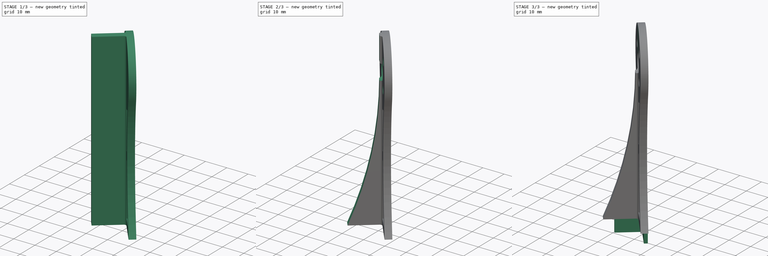
[diagram: build sequence overview — one tinted view per stage of 3, left to right]
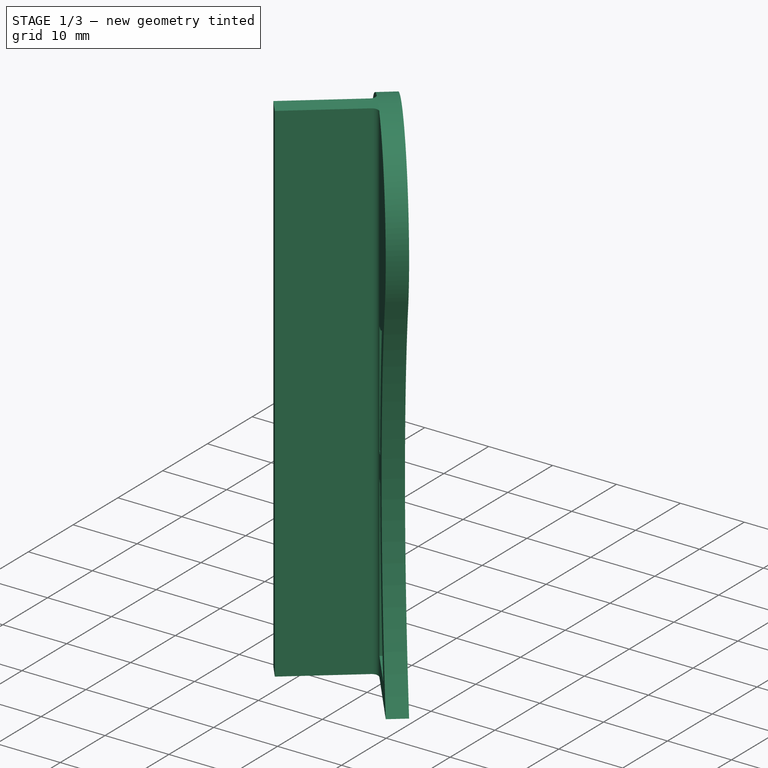
[diagram: stage 1 of 3 — iso view after this stage's code; geometry added in this stage tinted green]
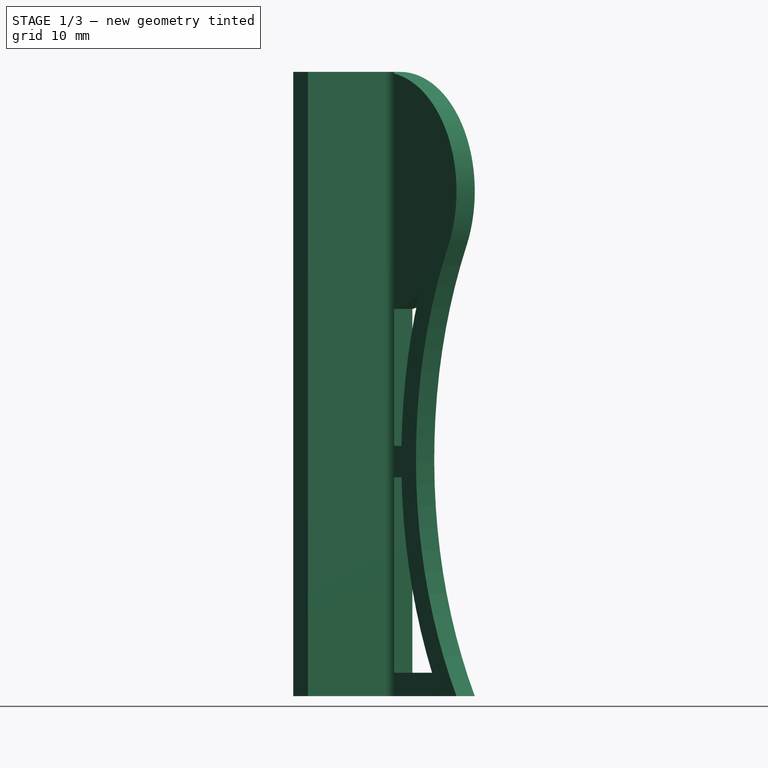
[diagram: stage 1 of 3 — front view after this stage's code; geometry added in this stage tinted green]
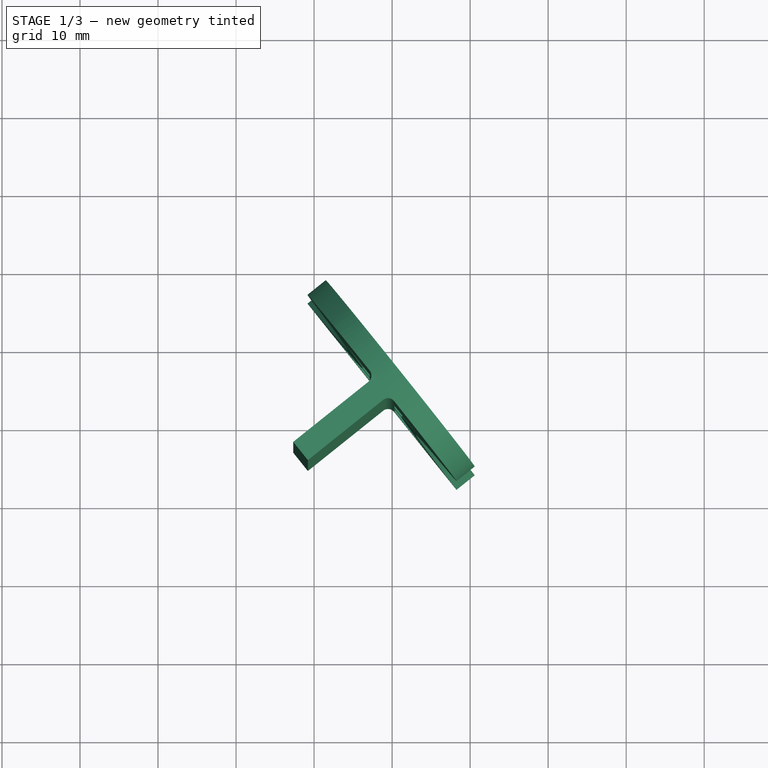
[diagram: stage 1 of 3 — top view after this stage's code; geometry added in this stage tinted green]
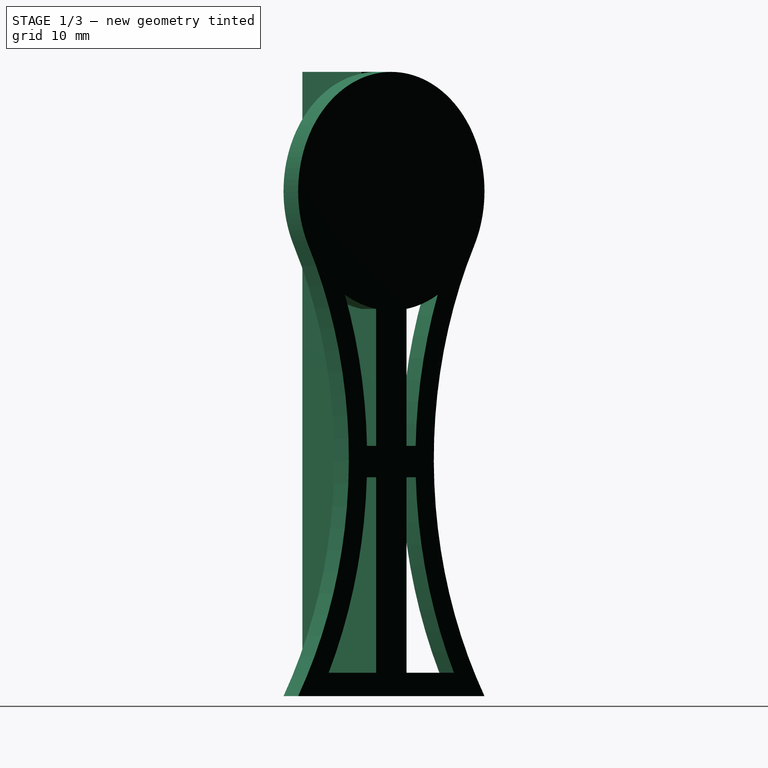
[diagram: stage 1 of 3 — right view after this stage's code; geometry added in this stage tinted green]
FCSTD DOCUMENT  (FreeCAD 0.16R6707 (Git))
Label: SupportMoteur
License: All rights reserved
LicenseURL: http://en.wikipedia.org/wiki/All_rights_reserved
objects: Sketcher::SketchObject×6, PartDesign::Pocket×4, PartDesign::Pad×2
note: 18 computed .brp shape members not serialized (recipe doc carries the construction recipe); baked Part::Feature solids carry a one-line shape summary decoded from their .brp

FEATURE [Sketcher::SketchObject] Sketch014
  Placement = pos=(0,0,6) rot=(0,0,1;0rad)
  sketch-geometry (11):
    g0: LineSegment StartX=149.153 StartY=6.26536 StartZ=0 EndX=157.141 EndY=-3.72233 EndZ=0
    g1: LineSegment StartX=151.496 StartY=8.13914 StartZ=0 EndX=170.595 EndY=-15.741 EndZ=0
    g2: LineSegment StartX=149.153 StartY=6.26536 StartZ=0 EndX=151.496 EndY=8.13914 EndZ=0
    g3: LineSegment StartX=168.252 StartY=-17.6148 StartZ=0 EndX=170.595 EndY=-15.741 EndZ=0
    g4: LineSegment [constr] StartX=148.268 StartY=-14.0198 StartZ=0 EndX=161.045 EndY=-3.80093 EndZ=0
    g5: LineSegment StartX=147.331 StartY=-12.8483 StartZ=0 EndX=149.205 EndY=-15.1912 EndZ=0
    g6: LineSegment StartX=149.205 StartY=-15.1912 StartZ=0 EndX=158.858 EndY=-7.47073 EndZ=0
    g7: LineSegment StartX=147.331 StartY=-12.8483 StartZ=0 EndX=156.984 EndY=-5.12788 EndZ=0
    g8: LineSegment StartX=160.264 StartY=-7.62709 StartZ=0 EndX=168.252 EndY=-17.6148 EndZ=0
    g9: ArcOfCircle CenterX=159.483 CenterY=-8.25168 CenterZ=0 NormalX=0 NormalY=0 NormalZ=1 Radius=1 StartAngle=0.674609 EndAngle=2.24541
    g10: ArcOfCircle CenterX=156.36 CenterY=-4.34692 CenterZ=0 NormalX=0 NormalY=0 NormalZ=1 Radius=1 StartAngle=5.387 EndAngle=6.95779
  constraints (24):
    c: Angle(g8,g4) = 1.5708
    c: Symmetric(g1,g1,g4)
    c: Angle(g3,g8) = 1.5708
    c: Distance(g3) = 3
    c: Symmetric(g5,g5,g4)
    c: Parallel(g7,g6)
    c: Distance(g5,g5) = 3
    c: Tangent(g0,g8)
    c: Tangent(g6,g9)
    c: Tangent(g8,g9)
    c: Tangent(g0,g10)
    c: Tangent(g7,g10)
    c: Symmetric(g6,g7,g4)
    c: Radius(g9) = 1
    c: Radius(g10) = 1
    c: PointOnObject(g4,g1)
    c: Symmetric(g0,g3,g4)
    c: Coincident(g5,g7)
    c: Coincident(g0,g2)
    c: Coincident(g1,g2)
    c: Coincident(g1,g3)
    c: Coincident(g3,g8)
    c: Coincident(g5,g6)
    c: PointOnObject(g4,g5)
FEATURE [PartDesign::Pad] Pad001
  Length = 80
  Length2 = 100
  Placement = pos=(0,0,6) rot=(0,0,1;0rad)
  Sketch = -> Sketch014
  Type = 0
FEATURE [Sketcher::SketchObject] Sketch016
  ExternalGeometry = -> [Pad001]
  Placement = pos=(96.3649,77.0711,6) rot=(0.321827,0.669488,0.669488;2.51887rad)
  Support = -> Pad001 [Face10]
  sketch-geometry (31):
    g0: ArcOfCircle CenterX=-103.556 CenterY=64.7109 CenterZ=0 NormalX=0 NormalY=0 NormalZ=1 Radius=15.2891 StartAngle=5.80762 EndAngle=9.90034
    g1: ArcOfCircle CenterX=-36.9119 CenterY=30.3901 CenterZ=0 NormalX=0 NormalY=0 NormalZ=1 Radius=59.673 StartAngle=2.66603 EndAngle=3.67594
    g2: ArcOfCircle CenterX=-170.2 CenterY=30.3901 CenterZ=0 NormalX=0 NormalY=0 NormalZ=1 Radius=59.673 StartAngle=5.74884 EndAngle=6.75875
    g3: LineSegment StartX=-118.845 StartY=0 StartZ=0 EndX=-131.376 EndY=0 EndZ=0
    g4: LineSegment StartX=-131.376 StartY=0 StartZ=0 EndX=-131.376 EndY=92.4454 EndZ=0
    g5: LineSegment StartX=-131.376 StartY=92.4454 StartZ=0 EndX=-73.6323 EndY=92.4454 EndZ=0
    g6: LineSegment StartX=-73.6323 StartY=92.4454 StartZ=0 EndX=-73.6323 EndY=0 EndZ=0
    g7: LineSegment StartX=-73.6323 StartY=0 StartZ=0 EndX=-88.2667 EndY=0 EndZ=0
    g8: LineSegment [constr] StartX=-170.2 StartY=30.3901 StartZ=0 EndX=-36.9119 EndY=30.3901 EndZ=0
    g9: ArcOfCircle CenterX=-36.9119 CenterY=30.3901 CenterZ=0 NormalX=0 NormalY=0 NormalZ=1 Radius=62.673 StartAngle=2.79883 EndAngle=3.11482
    g10: ArcOfCircle CenterX=-170.2 CenterY=30.3901 CenterZ=0 NormalX=0 NormalY=0 NormalZ=1 Radius=62.673 StartAngle=5.83089 EndAngle=6.24578
    g11: ArcOfCircle CenterX=-103.556 CenterY=64.7109 CenterZ=0 NormalX=0 NormalY=0 NormalZ=1 Radius=15.2891 StartAngle=4.1909 EndAngle=4.54814
    g12: GeomPoint [constr] X=-107.527 Y=30.3901 Z=0
    g13: GeomPoint [constr] X=-110.527 Y=30.3901 Z=0
    g14: GeomPoint [constr] X=-99.585 Y=30.3901 Z=0
    g15: GeomPoint [constr] X=-96.585 Y=30.3901 Z=0
    g16: LineSegment StartX=-101.056 StartY=49.6275 StartZ=0 EndX=-101.056 EndY=32.0676 EndZ=0
    g17: LineSegment StartX=-106.056 StartY=49.6275 StartZ=0 EndX=-106.056 EndY=32.0676 EndZ=0
    g18: LineSegment StartX=-107.549 StartY=32.0676 StartZ=0 EndX=-106.056 EndY=32.0676 EndZ=0
    g19: LineSegment StartX=-107.571 StartY=28.0464 StartZ=0 EndX=-106.056 EndY=28.0464 EndZ=0
    g20: LineSegment StartX=-106.056 StartY=28.0464 StartZ=0 EndX=-106.056 EndY=3 EndZ=0
    g21: LineSegment StartX=-101.056 StartY=28.0464 StartZ=0 EndX=-101.056 EndY=3 EndZ=0
    g22: LineSegment StartX=-101.056 StartY=32.0676 StartZ=0 EndX=-99.5625 EndY=32.0676 EndZ=0
    g23: LineSegment StartX=-101.056 StartY=28.0464 StartZ=0 EndX=-99.5411 EndY=28.0464 EndZ=0
    g24: ArcOfCircle CenterX=-170.2 CenterY=30.3901 CenterZ=0 NormalX=0 NormalY=0 NormalZ=1 Radius=62.673 StartAngle=0.0267686 EndAngle=0.342764
    g25: ArcOfCircle CenterX=-36.9119 CenterY=30.3901 CenterZ=0 NormalX=0 NormalY=0 NormalZ=1 Radius=62.673 StartAngle=3.179 EndAngle=3.59389
    g26: ArcOfCircle CenterX=-103.556 CenterY=64.7109 CenterZ=0 NormalX=0 NormalY=0 NormalZ=1 Radius=15.2891 StartAngle=4.87664 EndAngle=5.23388
    g27: ArcOfCircle [constr] CenterX=-103.556 CenterY=64.7109 CenterZ=0 NormalX=0 NormalY=0 NormalZ=1 Radius=15.2891 StartAngle=3.61716 EndAngle=5.80762
    g28: LineSegment StartX=-113.829 StartY=3 StartZ=0 EndX=-106.056 EndY=3 EndZ=0
    g29: LineSegment StartX=-101.056 StartY=3 StartZ=0 EndX=-93.283 EndY=3 EndZ=0
    g30: LineSegment [constr] StartX=-103.556 StartY=33.4455 StartZ=0 EndX=-103.556 EndY=26.2823 EndZ=0
  constraints (79):
    c: Coincident(g0,g1)
    c: Coincident(g0,g2)
    c: Coincident(g1,g7)
    c: Coincident(g5,g6)
    c: Coincident(g6,g7)
    c: Coincident(g4,g5)
    c: Coincident(g3,g4)
    c: Coincident(g2,g3)
    c: DistanceY(g0,g0) = 7
    c: DistanceY(g0,g0) = 7
    c: Coincident(g2,g-3)
    c: Coincident(g1,g-4)
    c: Tangent(g0,g-3)
    c: Tangent(g-5,g0)
    c: Tangent(g0,g-4)
    c: PointOnObject(g6,g-1)
    c: PointOnObject(g3,g-1)
    c: Vertical(g6)
    c: Vertical(g4)
    c: Horizontal(g5)
    c: Horizontal(g8)
    c: Coincident(g1,g8)
    c: Coincident(g2,g8)
    c: Coincident(g10,g2)
    c: Coincident(g9,g1)
    c: Coincident(g0,g11)
    c: PointOnObject(g9,g11)
    c: PointOnObject(g13,g2)
    c: PointOnObject(g13,g8)
    c: PointOnObject(g12,g10)
    c: PointOnObject(g12,g8)
    c: PointOnObject(g14,g9)
    c: PointOnObject(g15,g1)
    c: PointOnObject(g14,g8)
    c: PointOnObject(g15,g8)
    c: DistanceX(g14,g15) = 3
    c: DistanceX(g13,g12) = 3
    c: Vertical(g16)
    c: Vertical(g17)
    c: Horizontal(g18)
    c: Horizontal(g19)
    c: Tangent(g17,g20)
    c: Tangent(g16,g21)
    c: Coincident(g18,g17)
    c: Coincident(g22,g16)
    c: Tangent(g18,g22)
    c: Coincident(g19,g20)
    c: Coincident(g23,g21)
    c: Tangent(g19,g23)
    c: Equal(g10,g24)
    c: Coincident(g24,g18)
    c: Coincident(g10,g24)
    c: Coincident(g10,g19)
    c: Equal(g9,g25)
    c: Coincident(g25,g23)
    c: Coincident(g9,g25)
    c: Coincident(g9,g22)
    c: Coincident(g11,g24)
    c: Equal(g11,g26)
    c: Coincident(g11,g17)
    c: Coincident(g26,g16)
    c: Coincident(g11,g26)
    c: PointOnObject(g26,g9)
    c: Coincident(g27,g0)
    c: Coincident(g27,g0)
    c: Coincident(g27,g0)
    c: PointOnObject(g11,g27)
    c: Tangent(g2,g0)
    c: Horizontal(g28)
    c: Horizontal(g29)
    c: Coincident(g21,g29)
    c: Coincident(g20,g28)
    c: Coincident(g10,g28)
    c: Coincident(g25,g29)
    c: DistanceY(g1,g21) = 3
    c: DistanceY(g2,g10) = 3
    c: DistanceX(g19,g21) = 5
    c: Symmetric(g15,g13,g30)
    c: Symmetric(g19,g21,g30)
FEATURE [PartDesign::Pocket] Pocket009
  Length = 3
  Placement = pos=(0,0,6) rot=(0,0,1;0rad)
  Sketch = -> Sketch016
  Type = 0
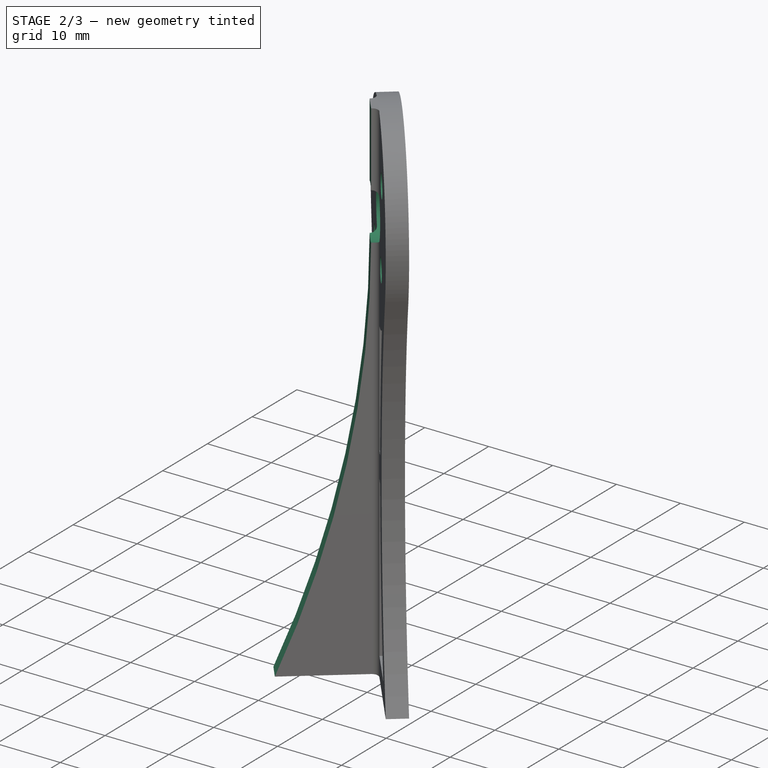
[diagram: stage 2 of 3 — iso view after this stage's code; geometry added in this stage tinted green]
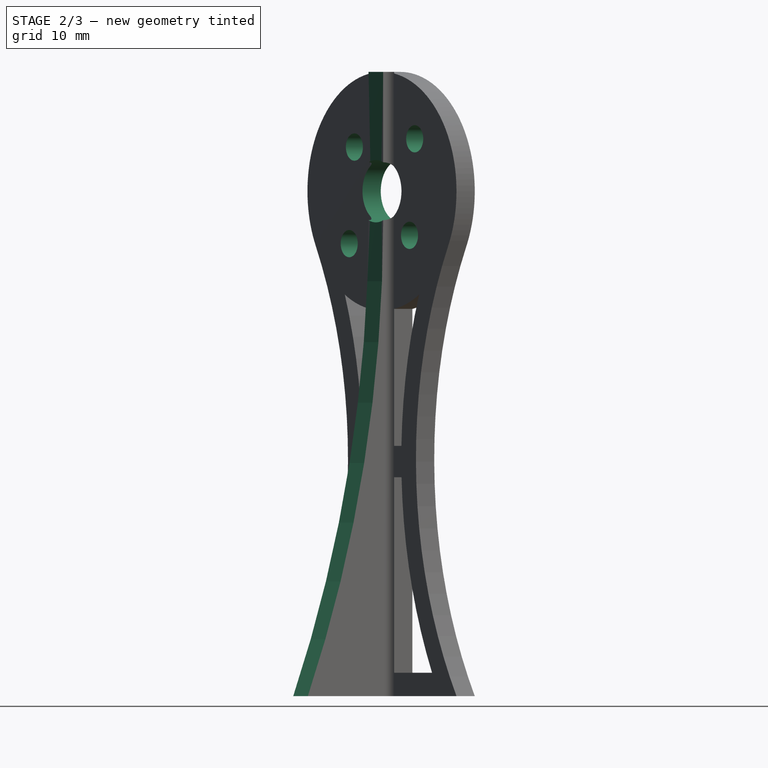
[diagram: stage 2 of 3 — front view after this stage's code; geometry added in this stage tinted green]
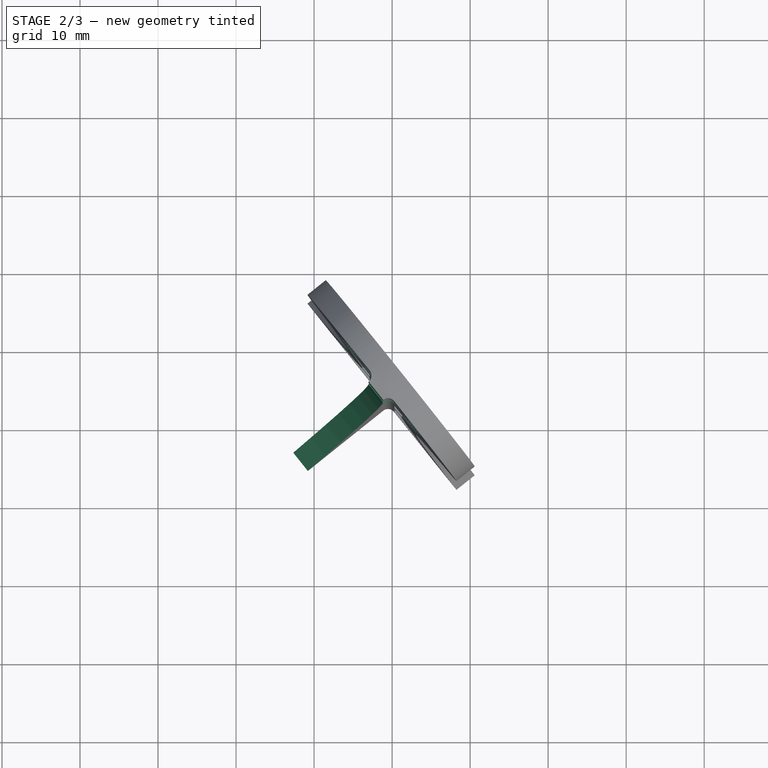
[diagram: stage 2 of 3 — top view after this stage's code; geometry added in this stage tinted green]
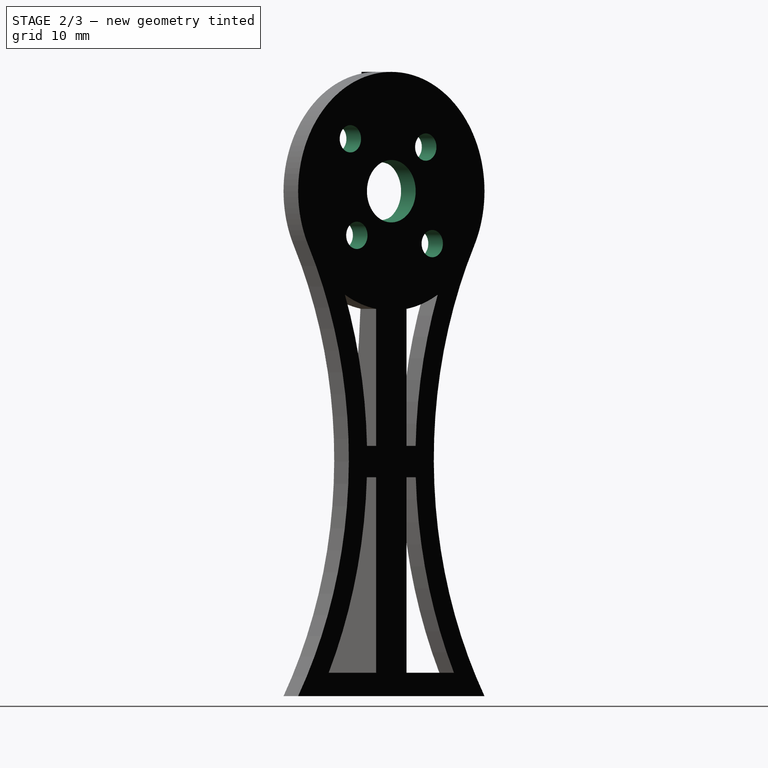
[diagram: stage 2 of 3 — right view after this stage's code; geometry added in this stage tinted green]
FEATURE [Sketcher::SketchObject] Sketch
  ExternalGeometry = -> [Pocket009]
  Placement = pos=(96.3649,77.0711,6) rot=(0.321827,0.669488,0.669488;2.51887rad)
  Support = -> Pocket009 [Face3]
  sketch-geometry (8):
    g0: Circle CenterX=-103.556 CenterY=64.7109 CenterZ=0 NormalX=0 NormalY=0 NormalZ=1 Radius=4
    g1: Circle CenterX=-97.899 CenterY=70.3677 CenterZ=0 NormalX=0 NormalY=0 NormalZ=1 Radius=1.75
    g2: Circle CenterX=-110.273 CenterY=71.4284 CenterZ=0 NormalX=0 NormalY=0 NormalZ=1 Radius=1.75
    g3: Circle CenterX=-109.213 CenterY=59.054 CenterZ=0 NormalX=0 NormalY=0 NormalZ=1 Radius=1.75
    g4: Circle CenterX=-96.8383 CenterY=57.9933 CenterZ=0 NormalX=0 NormalY=0 NormalZ=1 Radius=1.75
    g5: LineSegment [constr] StartX=-103.556 StartY=80 StartZ=0 EndX=-103.556 EndY=64.7109 EndZ=0
    g6: LineSegment [constr] StartX=-109.213 StartY=59.054 StartZ=0 EndX=-97.899 EndY=70.3677 EndZ=0
    g7: LineSegment [constr] StartX=-110.273 StartY=71.4284 StartZ=0 EndX=-96.8383 EndY=57.9933 EndZ=0
  constraints (21):
    c: Coincident(g0,g-3)
    c: Radius(g2) = 1.75
    c: Radius(g0) = 4
    c: Radius(g1) = 1.75
    c: Radius(g3) = 1.75
    c: Radius(g4) = 1.75
    c: Vertical(g5)
    c: Coincident(g7,g2)
    c: Coincident(g1,g6)
    c: Coincident(g5,g0)
    c: PointOnObject(g0,g6)
    c: PointOnObject(g0,g7)
    c: Coincident(g6,g3)
    c: Coincident(g7,g4)
    c: Coincident(g5,g-3)
    c: Angle(g7,g6) = 1.5708
    c: Angle(g6,g5) = 0.785398
    c: Distance(g2,g0) = 9.5
    c: Distance(g0,g4) = 9.5
    c: Distance(g0,g1) = 8
    c: Distance(g3,g0) = 8
FEATURE [PartDesign::Pocket] Pocket
  Length = 5
  Placement = pos=(0,0,6) rot=(0,0,1;0rad)
  Sketch = -> Sketch
  Type = 1
FEATURE [Sketcher::SketchObject] Sketch017
  ExternalGeometry = -> [Pocket]
  Placement = pos=(65.6171,-82.0435,6) rot=(0.895865,0.314186,0.314186;1.68054rad)
  Support = -> Pocket [Face11]
  sketch-geometry (4):
    g0: ArcOfCircle CenterX=-37.3168 CenterY=61.0029 CenterZ=0 NormalX=0 NormalY=0 NormalZ=1 Radius=156.711 StartAngle=5.88335 EndAngle=6.28318
    g1: LineSegment StartX=119.394 StartY=61.0028 StartZ=0 EndX=119.394 EndY=80 EndZ=0
    g2: LineSegment StartX=119.394 StartY=80 StartZ=0 EndX=107.034 EndY=80 EndZ=0
    g3: LineSegment StartX=107.034 StartY=80 StartZ=0 EndX=107.034 EndY=0 EndZ=0
  constraints (11):
    c: PointOnObject(g0,g-1)
    c: Coincident(g-3,g0)
    c: Coincident(g0,g-7)
    c: Tangent(g-7,g0)
    c: Horizontal(g2)
    c: Coincident(g3,g0)
    c: Coincident(g2,g3)
    c: Coincident(g2,g-5)
    c: Coincident(g1,g2)
    c: Coincident(g1,g-6)
    c: Coincident(g1,g0)
FEATURE [PartDesign::Pocket] Pocket010
  Length = 5
  Placement = pos=(0,0,6) rot=(0,0,1;0rad)
  Sketch = -> Sketch017
  Type = 1
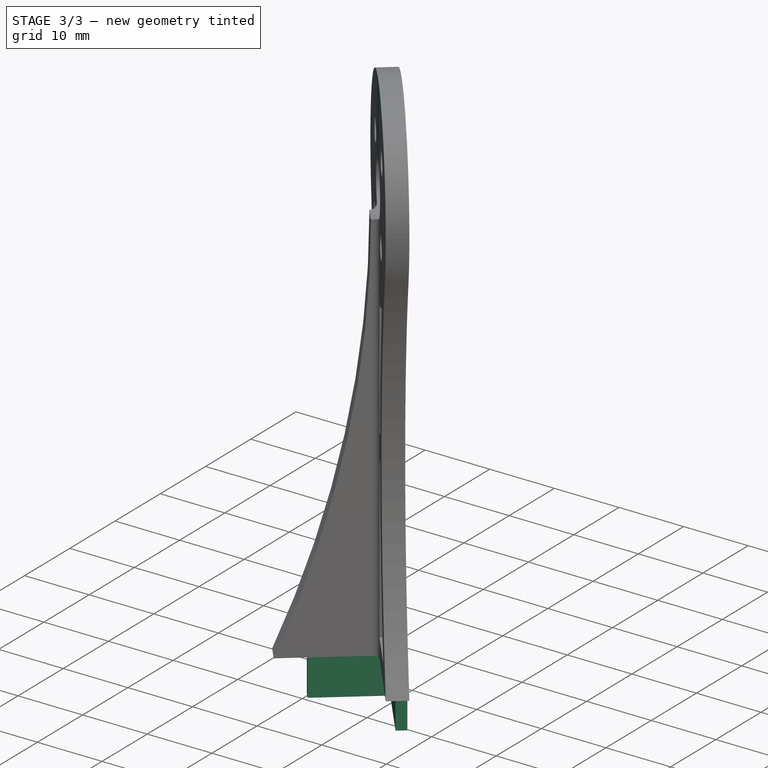
[diagram: stage 3 of 3 — iso view after this stage's code; geometry added in this stage tinted green]
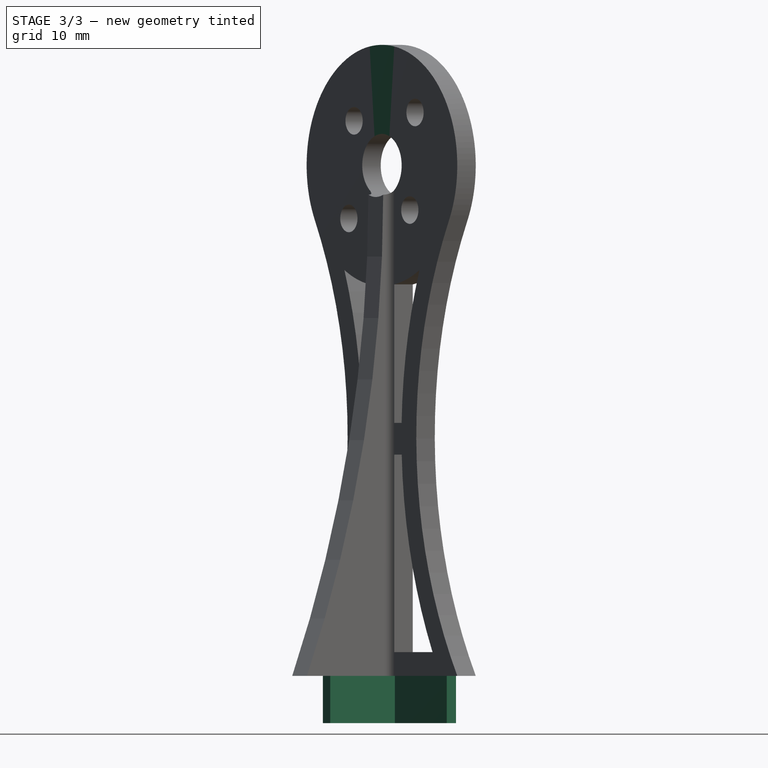
[diagram: stage 3 of 3 — front view after this stage's code; geometry added in this stage tinted green]
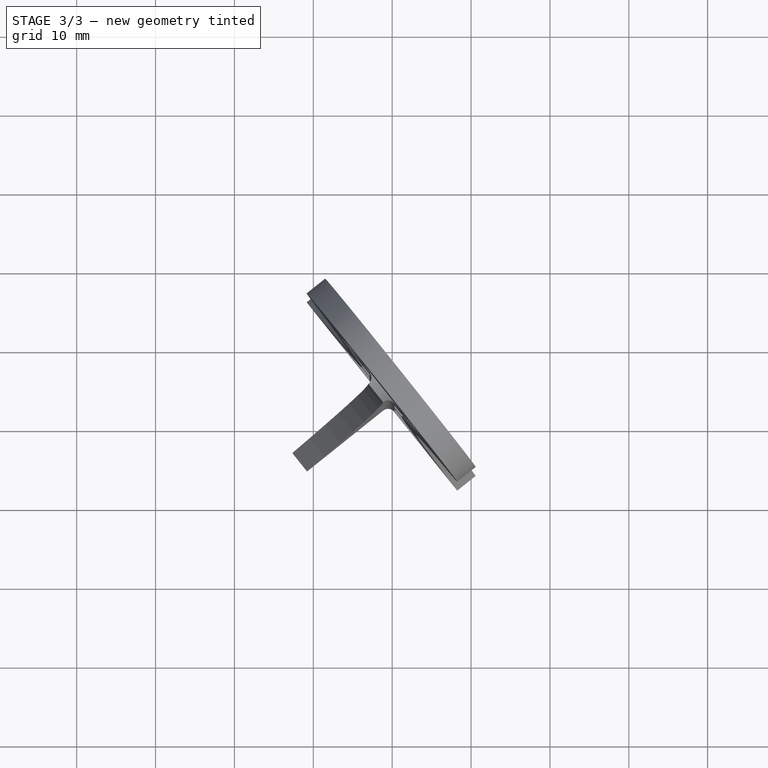
[diagram: stage 3 of 3 — top view after this stage's code; geometry added in this stage tinted green]
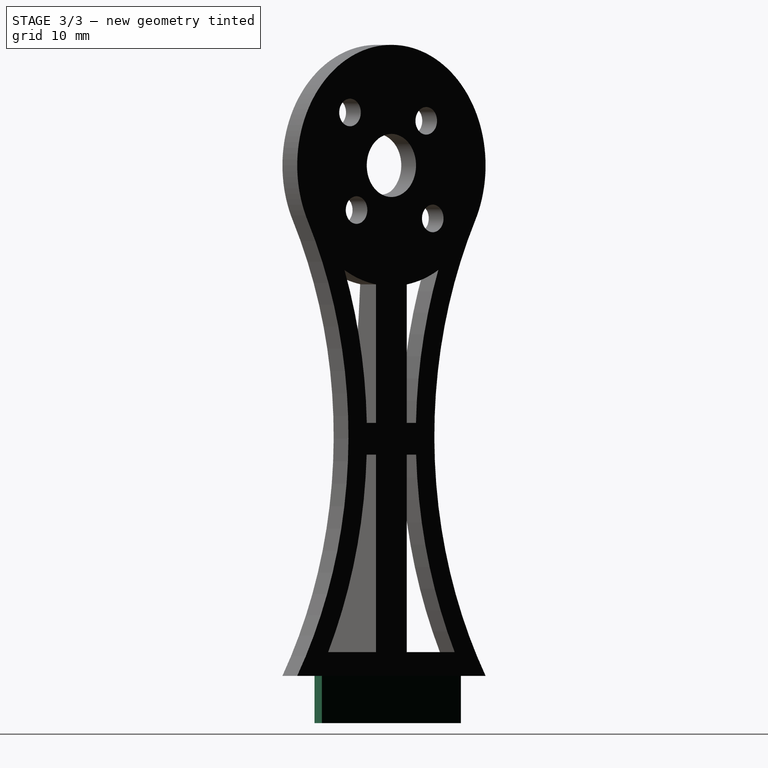
[diagram: stage 3 of 3 — right view after this stage's code; geometry added in this stage tinted green]
FEATURE [Sketcher::SketchObject] Sketch018
  ExternalGeometry = -> [Pocket010]
  Placement = pos=(94.022,75.1973,6) rot=(0.826995,-0.397542,-0.397542;1.75962rad)
  Support = -> Pocket010 [Face4]
  sketch-geometry (4):
    g0: LineSegment StartX=101.056 StartY=81.256 StartZ=0 EndX=106.056 EndY=81.256 EndZ=0
    g1: LineSegment StartX=106.056 StartY=81.256 StartZ=0 EndX=106.056 EndY=67.8334 EndZ=0
    g2: LineSegment StartX=106.056 StartY=67.8334 StartZ=0 EndX=101.056 EndY=67.8334 EndZ=0
    g3: LineSegment StartX=101.056 StartY=67.8334 StartZ=0 EndX=101.056 EndY=81.256 EndZ=0
  constraints (10):
    c: Coincident(g0,g1)
    c: Coincident(g1,g2)
    c: Coincident(g2,g3)
    c: Coincident(g3,g0)
    c: Horizontal(g0)
    c: Horizontal(g2)
    c: Vertical(g1)
    c: Vertical(g3)
    c: Coincident(g1,g-4)
    c: Coincident(g2,g-3)
FEATURE [PartDesign::Pocket] Pocket011
  Length = 5
  Placement = pos=(0,0,6) rot=(0,0,1;0rad)
  Reversed = true
  Sketch = -> Sketch018
  Type = 1
FEATURE [Sketcher::SketchObject] Sketch019
  ExternalGeometry = -> [Pocket011]
  Placement = pos=(0,0,6) rot=(1,0,0;3.14159rad)
  Support = -> Pocket011 [Face1]
  sketch-geometry (10):
    g0: LineSegment StartX=168.096 StartY=12.6172 StartZ=0 EndX=153.994 EndY=-5.01534 EndZ=0
    g1: LineSegment StartX=153.994 StartY=-5.01534 StartZ=0 EndX=152.823 EndY=-4.07845 EndZ=0
    g2: LineSegment StartX=166.925 StartY=13.5541 StartZ=0 EndX=168.096 EndY=12.6172 EndZ=0
    g3: LineSegment StartX=166.925 StartY=13.5541 StartZ=0 EndX=160.342 EndY=5.32353 EndZ=0
    g4: LineSegment StartX=160.342 StartY=5.32353 StartZ=0 EndX=152.142 EndY=11.8818 EndZ=0
    g5: LineSegment StartX=151.205 StartY=10.7103 StartZ=0 EndX=159.405 EndY=4.15211 EndZ=0
    g6: LineSegment StartX=151.205 StartY=10.7103 StartZ=0 EndX=152.142 EndY=11.8818 EndZ=0
    g7: LineSegment StartX=159.405 StartY=4.15211 StartZ=0 EndX=152.823 EndY=-4.07845 EndZ=0
    g8: LineSegment [constr] StartX=157.126 StartY=6.93528 StartZ=0 EndX=157.126 EndY=6.93528 EndZ=0
    g9: LineSegment [constr] StartX=150.148 StartY=12.516 StartZ=0 EndX=151.606 EndY=11.35 EndZ=0
  constraints (25):
    c: Coincident(g6,g4)
    c: Coincident(g6,g5)
    c: Coincident(g3,g2)
    c: Coincident(g7,g1)
    c: Coincident(g0,g1)
    c: Coincident(g2,g0)
    c: Parallel(g2,g-5)
    c: Parallel(g-4,g1)
    c: Parallel(g0,g-3)
    c: Parallel(g-3,g3)
    c: Parallel(g5,g-7)
    c: Parallel(g-7,g4)
    c: Parallel(g6,g3)
    c: Coincident(g3,g4)
    c: Coincident(g7,g5)
    c: Tangent(g3,g7)
    c: Distance(g3,g5) = 1.5
    c: Distance(g5,g5) = 10.5
    c: Distance(g1,g0) = 1.5
    c: PointOnObject(g0,g-3)
    c: Distance(g0,g-5) = 4
    c: Distance(g0,g-4) = 4
    c: Angle(g9,g-6) = 1.5708
    c: Symmetric(g-8,g-7,g9)
    c: Symmetric(g5,g4,g9)
FEATURE [PartDesign::Pad] Pad
  Length = 6
  Length2 = 100
  Placement = pos=(0,0,6) rot=(0,0,1;0rad)
  Sketch = -> Sketch019
  Type = 0
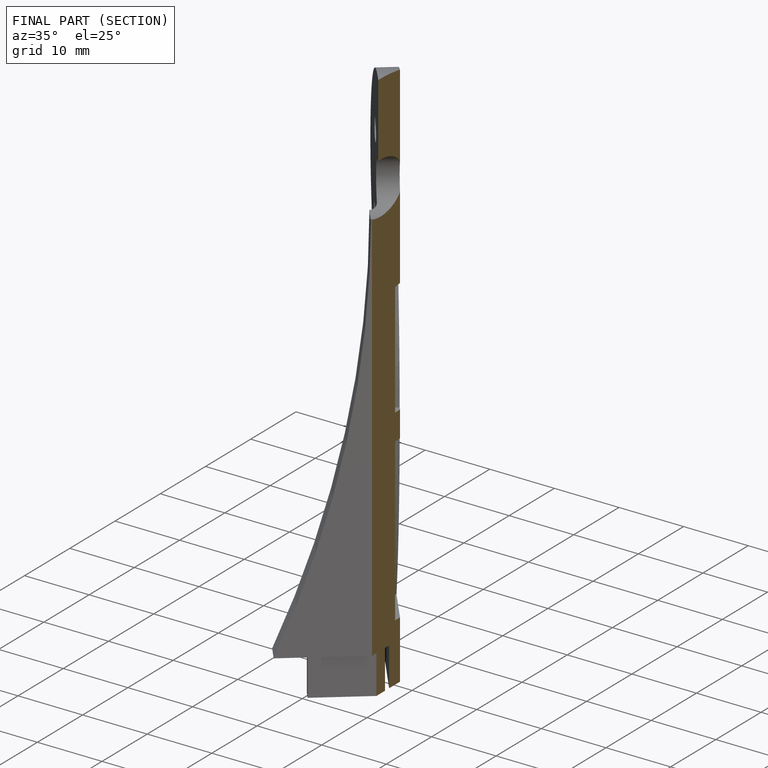
[diagram: finished part — half-section view (interior)]
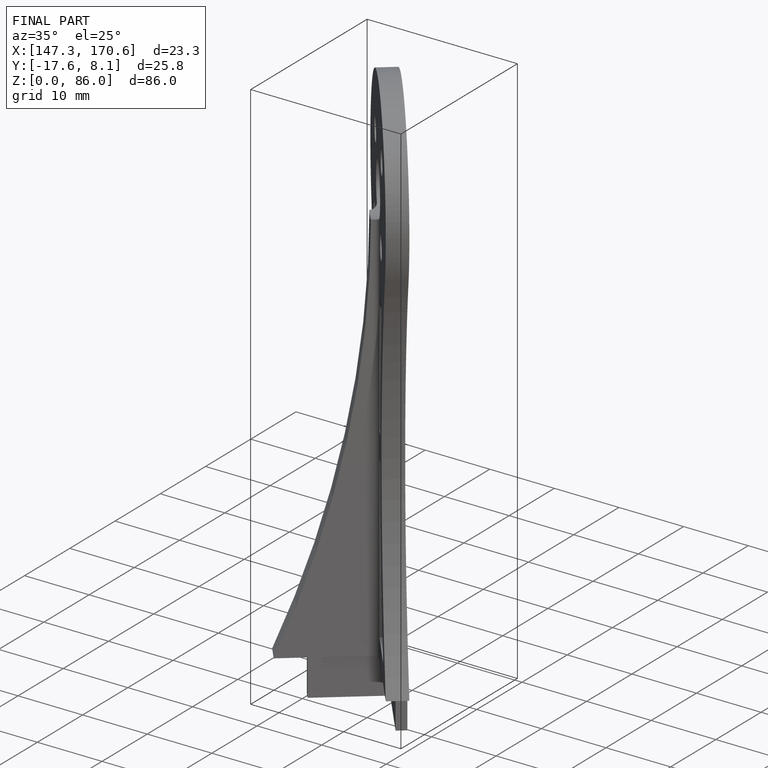
[diagram: finished part — iso view with bounding-box wireframe]
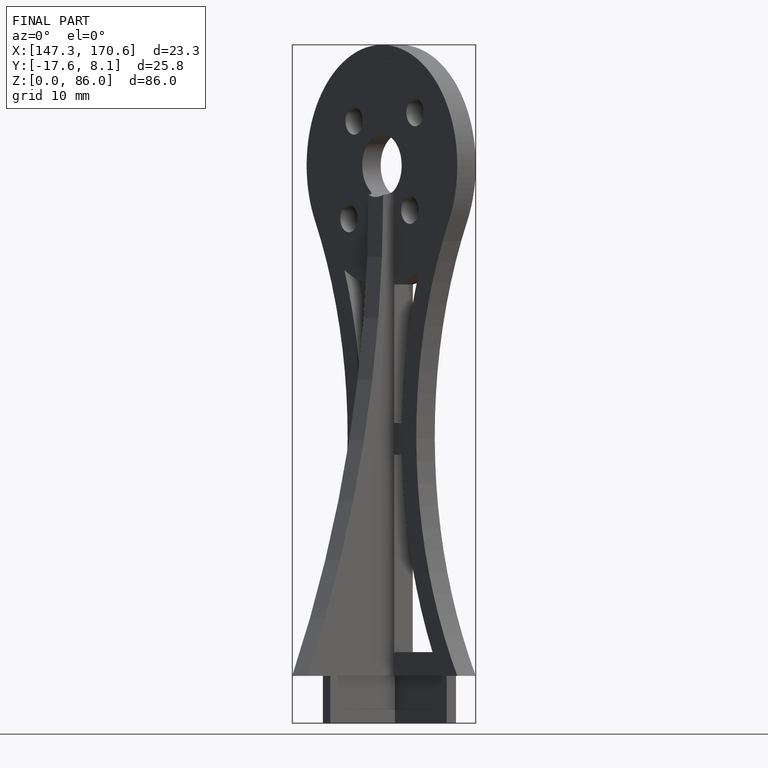
[diagram: finished part — front view with bounding-box wireframe]
